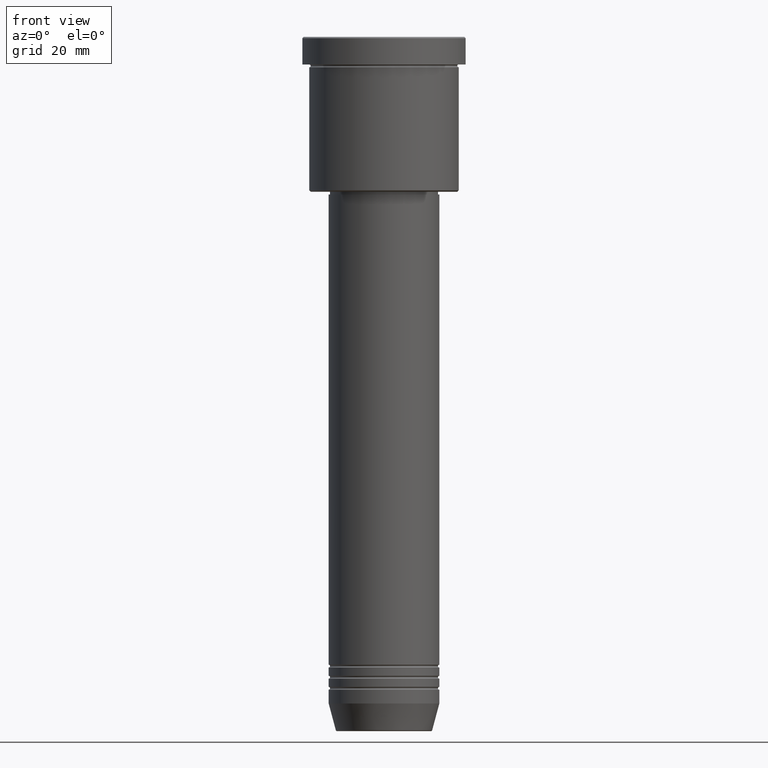
[diagram: clean part render]
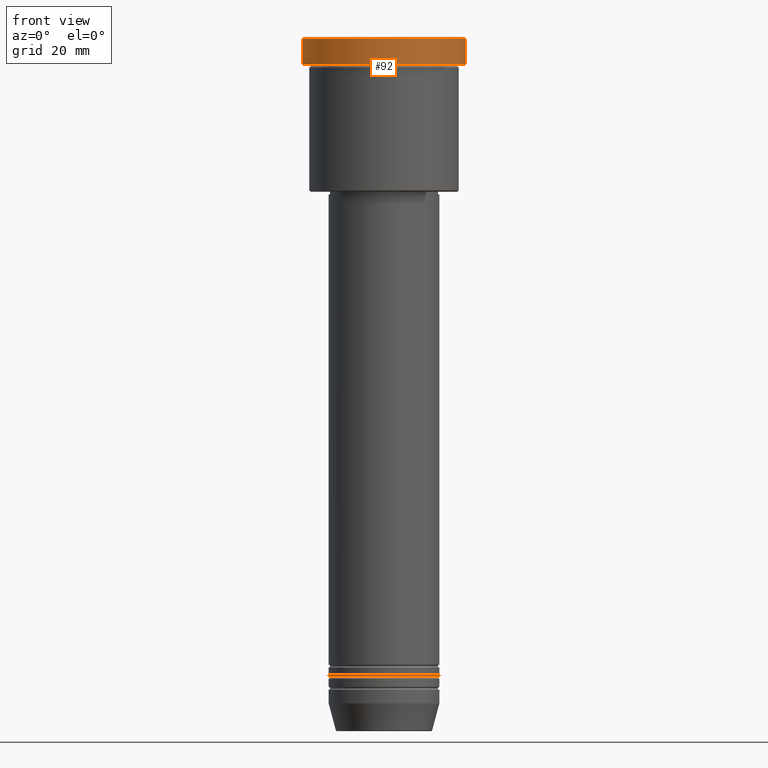
[diagram: same view with one face highlighted and labeled with its STEP entity id]
A machine part, front view. The second image highlights one B-rep face of the part: STEP entity #92.
In plain terms, the highlighted cylindrical surface (partial cylindrical patch) has radius 29.5 mm, axis along (-0, -0, 1).
Its self-contained STEP definition (entity closure, byte-faithful):
#11 = CARTESIAN_POINT ( 'NONE',  ( 29.50000000000000000, 0.000000000000000000, 0.000000000000000000 ) ) ;
#38 = DIRECTION ( 'NONE',  ( 1.000000000000000000, 0.000000000000000000, 0.000000000000000000 ) ) ;
#92 = ADVANCED_FACE ( 'NONE', ( #932 ), #479, .T. ) ;
#149 = CARTESIAN_POINT ( 'NONE',  ( 29.50000000000000000, 0.000000000000000000, -9.999999999999992895 ) ) ;
#169 = DIRECTION ( 'NONE',  ( 1.000000000000000000, 0.000000000000000000, 0.000000000000000000 ) ) ;
#193 = CARTESIAN_POINT ( 'NONE',  ( -29.50000000000000000, 3.612708057484691604E-15, -0.5000000000000559552 ) ) ;
#199 = LINE ( 'NONE', #1183, #1041 ) ;
#228 = DIRECTION ( 'NONE',  ( -0.000000000000000000, -0.000000000000000000, 1.000000000000000000 ) ) ;
#242 = EDGE_CURVE ( 'NONE', #850, #246, #288, .T. ) ;
#246 = VERTEX_POINT ( 'NONE', #149 ) ;
#286 = DIRECTION ( 'NONE',  ( -0.000000000000000000, -0.000000000000000000, 1.000000000000000000 ) ) ;
#288 = CIRCLE ( 'NONE', #493, 29.50000000000000000 ) ;
#316 = DIRECTION ( 'NONE',  ( 1.000000000000000000, 0.000000000000000000, 0.000000000000000000 ) ) ;
#321 = CARTESIAN_POINT ( 'NONE',  ( 0.000000000000000000, 0.000000000000000000, -0.5000000000000559552 ) ) ;
#396 = LINE ( 'NONE', #11, #1079 ) ;
#479 = CYLINDRICAL_SURFACE ( 'NONE', #765, 29.50000000000000000 ) ;
#490 = EDGE_LOOP ( 'NONE', ( #523, #662, #780, #1143 ) ) ;
#493 = AXIS2_PLACEMENT_3D ( 'NONE', #1142, #522, #169 ) ;
#522 = DIRECTION ( 'NONE',  ( -0.000000000000000000, -0.000000000000000000, 1.000000000000000000 ) ) ;
#523 = ORIENTED_EDGE ( 'NONE', *, *, #849, .F. ) ;
#662 = ORIENTED_EDGE ( 'NONE', *, *, #242, .T. ) ;
#672 = AXIS2_PLACEMENT_3D ( 'NONE', #321, #838, #316 ) ;
#728 = CARTESIAN_POINT ( 'NONE',  ( -29.50000000000000000, 3.612708057484691604E-15, -9.999999999999992895 ) ) ;
#765 = AXIS2_PLACEMENT_3D ( 'NONE', #1025, #228, #38 ) ;
#780 = ORIENTED_EDGE ( 'NONE', *, *, #801, .T. ) ;
#801 = EDGE_CURVE ( 'NONE', #246, #1085, #396, .T. ) ;
#806 = VERTEX_POINT ( 'NONE', #193 ) ;
#838 = DIRECTION ( 'NONE',  ( 0.000000000000000000, 0.000000000000000000, -1.000000000000000000 ) ) ;
#849 = EDGE_CURVE ( 'NONE', #850, #806, #199, .T. ) ;
#850 = VERTEX_POINT ( 'NONE', #728 ) ;
#874 = CARTESIAN_POINT ( 'NONE',  ( 29.50000000000000000, 0.000000000000000000, -0.5000000000000559552 ) ) ;
#903 = CIRCLE ( 'NONE', #672, 29.50000000000000000 ) ;
#932 = FACE_OUTER_BOUND ( 'NONE', #490, .T. ) ;
#987 = EDGE_CURVE ( 'NONE', #1085, #806, #903, .T. ) ;
#1025 = CARTESIAN_POINT ( 'NONE',  ( 0.000000000000000000, 0.000000000000000000, 0.000000000000000000 ) ) ;
#1041 = VECTOR ( 'NONE', #1106, 1000.000000000000000 ) ;
#1079 = VECTOR ( 'NONE', #286, 1000.000000000000000 ) ;
#1085 = VERTEX_POINT ( 'NONE', #874 ) ;
#1106 = DIRECTION ( 'NONE',  ( -0.000000000000000000, -0.000000000000000000, 1.000000000000000000 ) ) ;
#1142 = CARTESIAN_POINT ( 'NONE',  ( 0.000000000000000000, 0.000000000000000000, -9.999999999999992895 ) ) ;
#1143 = ORIENTED_EDGE ( 'NONE', *, *, #987, .T. ) ;
#1183 = CARTESIAN_POINT ( 'NONE',  ( -29.50000000000000000, 3.612708057484691604E-15, 0.000000000000000000 ) ) ;